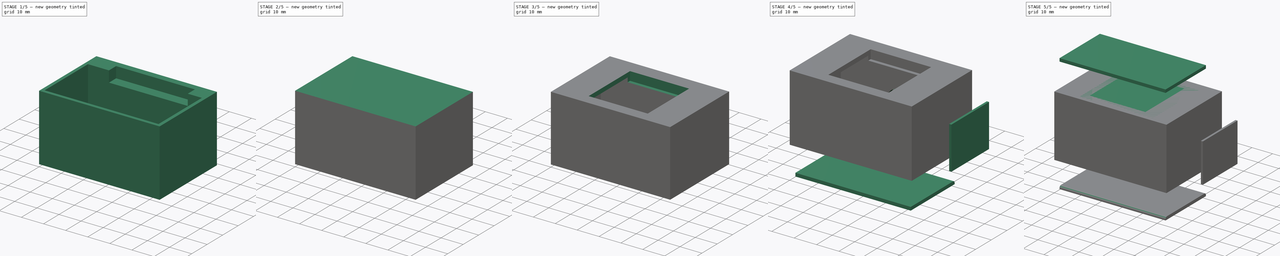
[diagram: build sequence overview — one tinted view per stage of 5, left to right]
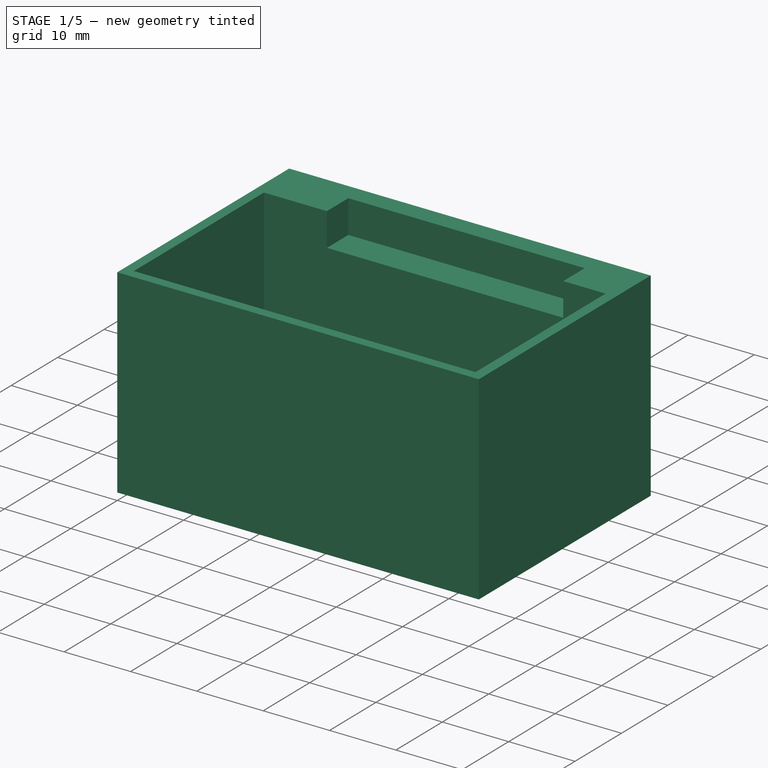
[diagram: stage 1 of 5 — iso view after this stage's code; geometry added in this stage tinted green]
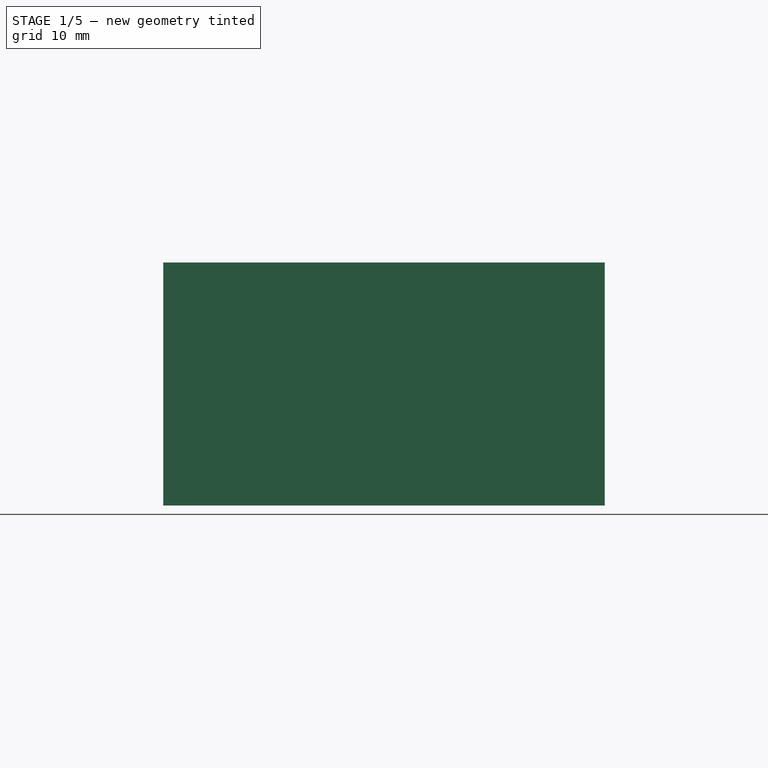
[diagram: stage 1 of 5 — front view after this stage's code; geometry added in this stage tinted green]
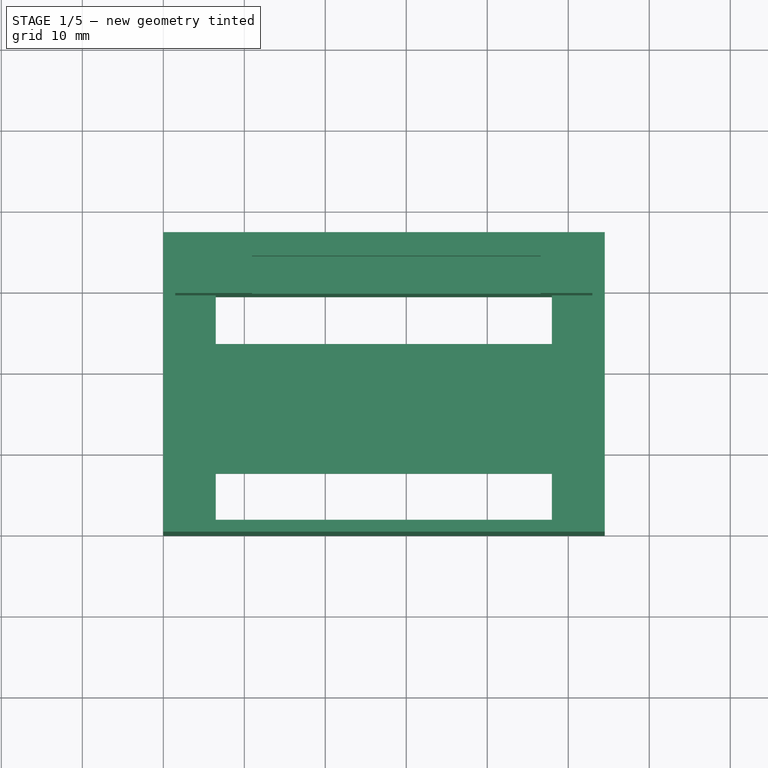
[diagram: stage 1 of 5 — top view after this stage's code; geometry added in this stage tinted green]
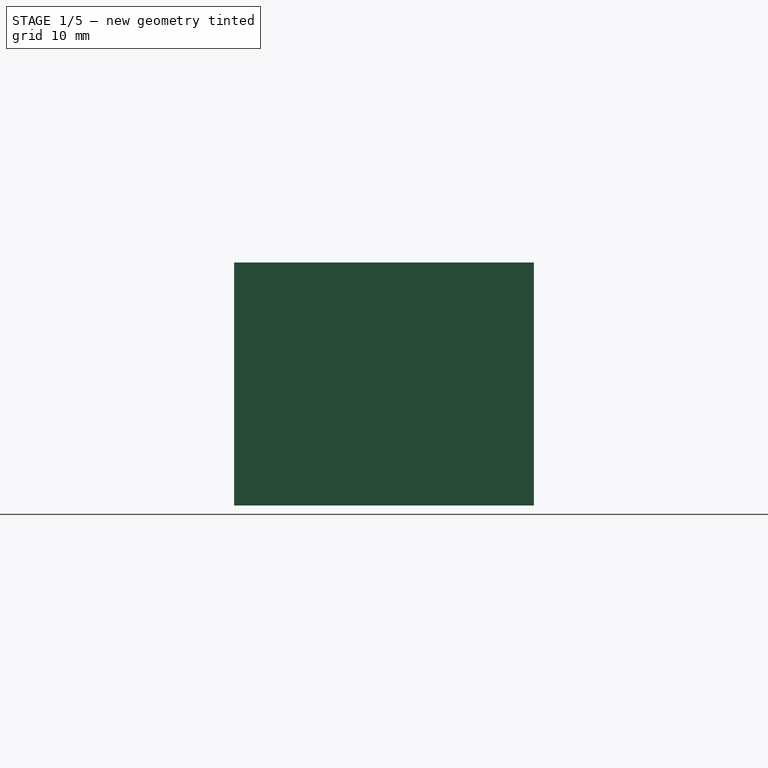
[diagram: stage 1 of 5 — right view after this stage's code; geometry added in this stage tinted green]
FCSTD DOCUMENT  (FreeCAD 1.0R39109 (Git))
Label: esp32
License: All rights reserved
LicenseURL: https://en.wikipedia.org/wiki/All_rights_reserved
objects: Sketcher::SketchObject×21, PartDesign::Pocket×17, PartDesign::Pad×12, Part::Box×4, PartDesign::Body×2, Part::Fillet×2, App::Part×1
note: 137 computed .brp shape members not serialized (recipe doc carries the construction recipe); baked Part::Feature solids carry a one-line shape summary decoded from their .brp

FEATURE [Sketcher::SketchObject] Sketch003
  ArcFitTolerance = 1e-06
  AttachmentSupport = -> [XY_Plane001]
  FullyConstrained = false
  MakeInternals = false
  MapMode = 5
  sketch-geometry (8):
    g0: LineSegment StartX=0 StartY=0 StartZ=0 EndX=54.5 EndY=0 EndZ=0
    g1: LineSegment StartX=54.5 StartY=0 StartZ=0 EndX=54.5 EndY=31 EndZ=0
    g2: LineSegment StartX=54.5 StartY=31 StartZ=0 EndX=0 EndY=31 EndZ=0
    g3: LineSegment StartX=0 StartY=31 StartZ=0 EndX=0 EndY=0 EndZ=0
    g4: LineSegment StartX=1.47324 StartY=29.4741 StartZ=0 EndX=1.47324 EndY=1.47406 EndZ=0
    g5: LineSegment StartX=1.47324 StartY=1.47406 StartZ=0 EndX=52.9732 EndY=1.47406 EndZ=0
    g6: LineSegment StartX=52.9732 StartY=1.47406 StartZ=0 EndX=52.9732 EndY=29.4741 EndZ=0
    g7: LineSegment StartX=52.9732 StartY=29.4741 StartZ=0 EndX=1.47324 EndY=29.4741 EndZ=0
  constraints (21):
    c: Coincident(g0,g1)
    c: Coincident(g1,g2)
    c: Coincident(g2,g3)
    c: Coincident(g3,g0)
    c: Horizontal(g0)
    c: Horizontal(g2)
    c: Vertical(g1)
    c: Vertical(g3)
    c: Distance(g1,g3) = 54.5
    c: Distance(g0,g2) = 31
    c: Coincident(g0,g-1)
    c: Coincident(g4,g5)
    c: Coincident(g5,g6)
    c: Coincident(g6,g7)
    c: Coincident(g7,g4)
    c: Vertical(g4)
    c: Vertical(g6)
    c: Horizontal(g5)
    c: Horizontal(g7)
    c: Distance(g4,g6) = 51.5
    c: Distance(g5,g7) = 28
FEATURE [PartDesign::Pad] Pad002
  Direction = (0,0,1)
  Length = 20
  Length2 = 10
  Profile = -> Sketch003
  ReferenceAxis = -> Sketch003 [N_Axis]
  Refine = true
  Suppressed = false
  Type = 4
FEATURE [Sketcher::SketchObject] Sketch004
  ArcFitTolerance = 1e-06
  AttachmentSupport = -> [Pad002]
  ExternalGeometry = -> [Pad002]
  FullyConstrained = false
  MakeInternals = false
  MapMode = 5
  Placement = pos=(1.47324,0,0) rot=(0.57735,0.57735,0.57735;2.0944rad)
  sketch-geometry (4):
    g0: LineSegment StartX=1.47406 StartY=0.979288 StartZ=0 EndX=29.4741 EndY=0.979288 EndZ=0
    g1: LineSegment StartX=29.4741 StartY=0.979288 StartZ=0 EndX=29.4741 EndY=2.97929 EndZ=0
    g2: LineSegment StartX=29.4741 StartY=2.97929 StartZ=0 EndX=1.47406 EndY=2.97929 EndZ=0
    g3: LineSegment StartX=1.47406 StartY=2.97929 StartZ=0 EndX=1.47406 EndY=0.979288 EndZ=0
  constraints (9):
    c: Coincident(g0,g1)
    c: Coincident(g1,g2)
    c: Coincident(g2,g3)
    c: Coincident(g3,g0)
    c: Horizontal(g0)
    c: Horizontal(g2)
    c: Vertical(g1)
    c: Vertical(g3)
    c: Distance(g1,g3) = 28
FEATURE [PartDesign::Pad] Pad003
  BaseFeature = -> Pad002
  Direction = (1,0,0)
  Length = 10
  Length2 = 10
  Profile = -> Sketch004
  ReferenceAxis = -> Sketch004 [N_Axis]
  Refine = true
  Suppressed = false
  Type = 1
FEATURE [Sketcher::SketchObject] Sketch005
  ArcFitTolerance = 1e-06
  AttachmentSupport = -> [Pad003]
  ExternalGeometry = -> [Pad003]
  FullyConstrained = true
  MakeInternals = false
  MapMode = 5
  Placement = pos=(0,0,2.97929) rot=(0,0,1;0rad)
  sketch-geometry (8):
    g0: LineSegment StartX=6.47324 StartY=29.4741 StartZ=0 EndX=6.47324 EndY=23.4741 EndZ=0
    g1: LineSegment StartX=6.47324 StartY=23.4741 StartZ=0 EndX=47.9732 EndY=23.4741 EndZ=0
    g2: LineSegment StartX=47.9732 StartY=23.4741 StartZ=0 EndX=47.9732 EndY=29.4741 EndZ=0
    g3: LineSegment StartX=47.9732 StartY=29.4741 StartZ=0 EndX=6.47324 EndY=29.4741 EndZ=0
    g4: LineSegment StartX=6.47324 StartY=1.47406 StartZ=0 EndX=47.9732 EndY=1.47406 EndZ=0
    g5: LineSegment StartX=47.9732 StartY=1.47406 StartZ=0 EndX=47.9732 EndY=7.47407 EndZ=0
    g6: LineSegment StartX=47.9732 StartY=7.47407 StartZ=0 EndX=6.47324 EndY=7.47407 EndZ=0
    g7: LineSegment StartX=6.47324 StartY=7.47407 StartZ=0 EndX=6.47324 EndY=1.47406 EndZ=0
  constraints (24):
    c: Coincident(g0,g1)
    c: Coincident(g1,g2)
    c: Coincident(g2,g3)
    c: Coincident(g3,g0)
    c: Vertical(g0)
    c: Vertical(g2)
    c: Horizontal(g1)
    c: Horizontal(g3)
    c: PointOnObject(g0,g-6)
    c: Distance(g-5,g0) = 5
    c: Distance(g-3,g2) = 5
    c: Distance(g3,g1) = 6
    c: Coincident(g4,g5)
    c: Coincident(g5,g6)
    c: Coincident(g6,g7)
    c: Coincident(g7,g4)
    c: Horizontal(g4)
    c: Horizontal(g6)
    c: Vertical(g5)
    c: Vertical(g7)
    c: PointOnObject(g4,g-4)
    c: Distance(g-5,g7) = 5
    c: Distance(g-3,g5) = 5
    c: Distance(g4,g6) = 6
FEATURE [PartDesign::Pocket] Pocket001
  BaseFeature = -> Pad003
  Direction = (0,0,-1)
  Length = 5
  Length2 = 5
  Profile = -> Sketch005
  ReferenceAxis = -> Sketch005 [N_Axis]
  Refine = true
  Suppressed = false
  Type = 0
FEATURE [Sketcher::SketchObject] Sketch007
  ArcFitTolerance = 1e-06
  AttachmentSupport = -> [Pad004]
  FullyConstrained = false
  MakeInternals = false
  MapMode = 5
  Placement = pos=(0,0,0) rot=(0.57735,-0.57735,-0.57735;2.0944rad)
  sketch-geometry (4):
    g0: LineSegment StartX=-18.0085 StartY=0.99461 StartZ=0 EndX=-10.0083 EndY=0.99461 EndZ=0
    g1: LineSegment StartX=-10.0083 StartY=0.99461 StartZ=0 EndX=-10.0083 EndY=5.99765 EndZ=0
    g2: LineSegment StartX=-10.0083 StartY=5.99765 StartZ=0 EndX=-18.0085 EndY=5.99765 EndZ=0
    g3: LineSegment StartX=-18.0085 StartY=5.99765 StartZ=0 EndX=-18.0085 EndY=0.99461 EndZ=0
  constraints (8):
    c: Coincident(g0,g1)
    c: Coincident(g1,g2)
    c: Coincident(g2,g3)
    c: Coincident(g3,g0)
    c: Horizontal(g0)
    c: Horizontal(g2)
    c: Vertical(g1)
    c: Vertical(g3)
FEATURE [PartDesign::Body] Body  label="ESP32"
  AllowCompound = false
  Group = -> [Sketch,Pad,Sketch001,Pocket,Sketch002,Pad001,Sketch006,Pad004,Sketch007]
  Origin = -> Origin
  Placement = pos=(1.5,29.5,0) rot=(1,0,0;3.14159rad)
  Tip = -> Pad004
FEATURE [Sketcher::SketchObject] Sketch008
  ArcFitTolerance = 1e-06
  AttachmentSupport = -> [Pocket001]
  FullyConstrained = true
  MakeInternals = false
  MapMode = 5
  Placement = pos=(1.47324,0,0) rot=(0.57735,0.57735,0.57735;2.0944rad)
FEATURE [Sketcher::SketchObject] Sketch009
  ArcFitTolerance = 1e-06
  AttachmentSupport = -> [Pocket001]
  ExternalGeometry = -> [Pocket001]
  FullyConstrained = true
  MakeInternals = false
  MapMode = 45
  Placement = pos=(1.47324,15.4741,-4.51036) rot=(0.707107,0,0.707107;3.14159rad)
  sketch-geometry (4):
    g0: LineSegment StartX=5.48964 StartY=-4 StartZ=0 EndX=5.48964 EndY=4 EndZ=0
    g1: LineSegment StartX=5.48964 StartY=4 StartZ=0 EndX=0.489644 EndY=4 EndZ=0
    g2: LineSegment StartX=0.489644 StartY=4 StartZ=0 EndX=0.489644 EndY=-4 EndZ=0
    g3: LineSegment StartX=0.489644 StartY=-4 StartZ=0 EndX=5.48964 EndY=-4 EndZ=0
  constraints (12):
    c: Coincident(g0,g1)
    c: Coincident(g1,g2)
    c: Coincident(g2,g3)
    c: Coincident(g3,g0)
    c: Vertical(g0)
    c: Vertical(g2)
    c: Horizontal(g1)
    c: Horizontal(g3)
    c: PointOnObject(g0,g-5)
    c: Distance(g-6,g1) = 10
    c: Distance(g-3,g3) = 10
    c: Distance(g0,g2) = 5
FEATURE [PartDesign::Pocket] Pocket002
  BaseFeature = -> Pocket001
  Direction = (-1,0,2e-16)
  Length = 5
  Length2 = 5
  Profile = -> Sketch009
  ReferenceAxis = -> Sketch009 [N_Axis]
  Refine = true
  Suppressed = false
  Type = 0
FEATURE [PartDesign::Pad] Pad005
  BaseFeature = -> Pocket002
  Direction = (0,1,0)
  Length = 6
  Length2 = 10
  Profile = -> Pocket002 [Face6]
  Refine = true
  Suppressed = false
  Type = 0
FEATURE [Sketcher::SketchObject] Sketch010
  ArcFitTolerance = 1e-06
  AttachmentSupport = -> [Pad005]
  FullyConstrained = false
  MakeInternals = false
  MapMode = 5
  Placement = pos=(0,0,20) rot=(0,0,1;0rad)
  sketch-geometry (4):
    g0: LineSegment StartX=10.9592 StartY=29.5073 StartZ=0 EndX=46.5899 EndY=29.5073 EndZ=0
    g1: LineSegment StartX=46.5899 StartY=29.5073 StartZ=0 EndX=46.5899 EndY=34.0852 EndZ=0
    g2: LineSegment StartX=46.5899 StartY=34.0852 StartZ=0 EndX=10.9592 EndY=34.0852 EndZ=0
    g3: LineSegment StartX=10.9592 StartY=34.0852 StartZ=0 EndX=10.9592 EndY=29.5073 EndZ=0
  constraints (8):
    c: Coincident(g0,g1)
    c: Coincident(g1,g2)
    c: Coincident(g2,g3)
    c: Coincident(g3,g0)
    c: Horizontal(g0)
    c: Horizontal(g2)
    c: Vertical(g1)
    c: Vertical(g3)
FEATURE [PartDesign::Pocket] Pocket003
  BaseFeature = -> Pad005
  Direction = (0,0,-1)
  Length = 5
  Length2 = 5
  Profile = -> Sketch010
  ReferenceAxis = -> Sketch010 [N_Axis]
  Refine = true
  Suppressed = false
  Type = 0
FEATURE [PartDesign::Pocket] Pocket004
  BaseFeature = -> Pocket003
  Direction = (0,-1,0)
  Length = 5
  Length2 = 5
  Profile = -> Pocket003 [Face17]
  Refine = true
  Suppressed = false
  Type = 0
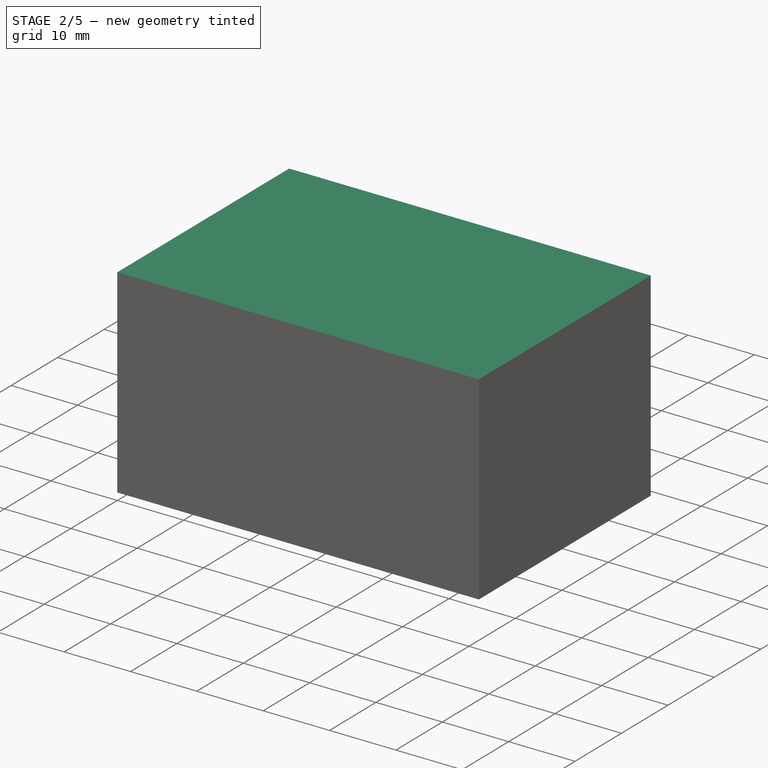
[diagram: stage 2 of 5 — iso view after this stage's code; geometry added in this stage tinted green]
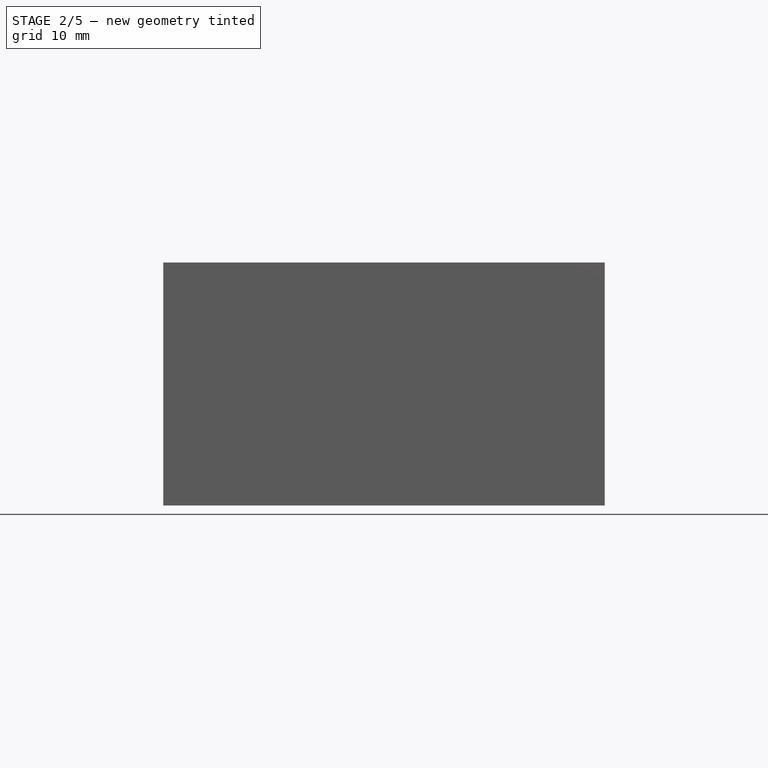
[diagram: stage 2 of 5 — front view after this stage's code; geometry added in this stage tinted green]
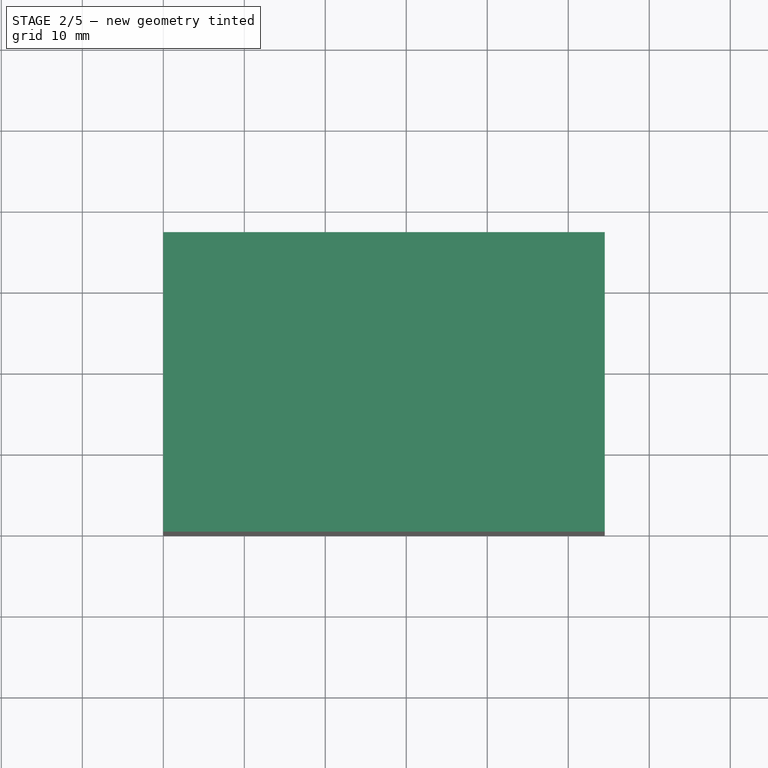
[diagram: stage 2 of 5 — top view after this stage's code; geometry added in this stage tinted green]
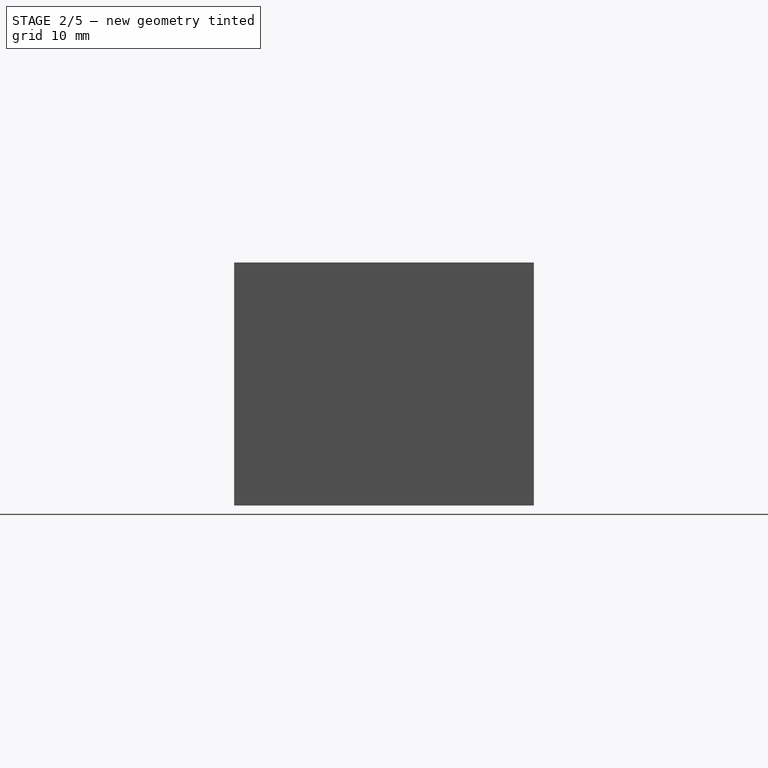
[diagram: stage 2 of 5 — right view after this stage's code; geometry added in this stage tinted green]
FEATURE [Sketcher::SketchObject] Sketch011
  ArcFitTolerance = 1e-06
  AttachmentSupport = -> [Pocket004]
  ExternalGeometry = -> [Pocket004]
  FullyConstrained = true
  MakeInternals = false
  MapMode = 5
  Placement = pos=(0,0,-10) rot=(1,0,0;3.14159rad)
  sketch-geometry (4):
    g0: LineSegment StartX=14 StartY=-30.7241 StartZ=0 EndX=14 EndY=-35.75 EndZ=0
    g1: LineSegment StartX=14 StartY=-35.75 StartZ=0 EndX=40.5 EndY=-35.75 EndZ=0
    g2: LineSegment StartX=40.5 StartY=-35.75 StartZ=0 EndX=40.5 EndY=-30.7241 EndZ=0
    g3: LineSegment StartX=40.5 StartY=-30.7241 StartZ=0 EndX=14 EndY=-30.7241 EndZ=0
  constraints (12):
    c: Coincident(g0,g1)
    c: Coincident(g1,g2)
    c: Coincident(g2,g3)
    c: Coincident(g3,g0)
    c: Vertical(g0)
    c: Vertical(g2)
    c: Horizontal(g1)
    c: Horizontal(g3)
    c: Distance(g-3,g3) = 1.25
    c: Distance(g-4,g1) = 1.25
    c: Distance(g-6,g2) = 14
    c: Distance(g-5,g0) = 14
FEATURE [PartDesign::Pocket] Pocket005
  BaseFeature = -> Pocket004
  Direction = (0,0,1)
  Length = 24
  Length2 = 5
  Profile = -> Sketch011
  ReferenceAxis = -> Sketch011 [N_Axis]
  Refine = true
  Suppressed = false
  Type = 0
FEATURE [Sketcher::SketchObject] Sketch012
  ArcFitTolerance = 1e-06
  AttachmentSupport = -> [Pocket005]
  ExternalGeometry = -> [Pocket005]
  FullyConstrained = true
  MakeInternals = false
  MapMode = 5
  Placement = pos=(0,30.7241,0) rot=(0,0.707107,0.707107;3.14159rad)
  sketch-geometry (1):
    g0: Circle CenterX=-24 CenterY=2 CenterZ=0 NormalX=0 NormalY=0 NormalZ=1 AngleXU=0 Radius=5
  constraints (3):
    c: Diameter(g0) = 10
    c: Distance(g0,g-4) = 10
    c: Distance(g0,g-5) = 12
FEATURE [PartDesign::Pocket] Pocket006
  BaseFeature = -> Pocket005
  Direction = (0,-1,2e-16)
  Length = 5
  Length2 = 5
  Profile = -> Sketch012
  ReferenceAxis = -> Sketch012 [N_Axis]
  Refine = true
  Suppressed = false
  Type = 0
FEATURE [Sketcher::SketchObject] Sketch013
  ArcFitTolerance = 1e-06
  AttachmentSupport = -> [Pocket006]
  ExternalGeometry = -> [Pocket006]
  FullyConstrained = true
  MakeInternals = false
  MapMode = 5
  Placement = pos=(0,37,0) rot=(0,0.707107,0.707107;3.14159rad)
  sketch-geometry (17):
    g0: LineSegment [constr] StartX=-14 StartY=-4 StartZ=0 EndX=-40.5 EndY=-4 EndZ=0
    g1: LineSegment StartX=-38 StartY=13 StartZ=0 EndX=-38 EndY=-3 EndZ=0
    g2: LineSegment StartX=-38 StartY=-3 StartZ=0 EndX=-34 EndY=-3 EndZ=0
    g3: LineSegment StartX=-34 StartY=-3 StartZ=0 EndX=-34 EndY=13 EndZ=0
    g4: LineSegment StartX=-34 StartY=13 StartZ=0 EndX=-38 EndY=13 EndZ=0
    g5: LineSegment StartX=-32 StartY=13 StartZ=0 EndX=-32 EndY=-3 EndZ=0
    g6: LineSegment StartX=-32 StartY=-3 StartZ=0 EndX=-28 EndY=-3 EndZ=0
    g7: LineSegment StartX=-28 StartY=-3 StartZ=0 EndX=-28 EndY=13 EndZ=0
    g8: LineSegment StartX=-28 StartY=13 StartZ=0 EndX=-32 EndY=13 EndZ=0
    g9: LineSegment StartX=-26 StartY=13 StartZ=0 EndX=-26 EndY=-3 EndZ=0
    g10: LineSegment StartX=-26 StartY=-3 StartZ=0 EndX=-22 EndY=-3 EndZ=0
    g11: LineSegment StartX=-22 StartY=-3 StartZ=0 EndX=-22 EndY=13 EndZ=0
    g12: LineSegment StartX=-22 StartY=13 StartZ=0 EndX=-26 EndY=13 EndZ=0
    g13: LineSegment StartX=-20 StartY=13 StartZ=0 EndX=-20 EndY=-3 EndZ=0
    g14: LineSegment StartX=-20 StartY=-3 StartZ=0 EndX=-16 EndY=-3 EndZ=0
    g15: LineSegment StartX=-16 StartY=-3 StartZ=0 EndX=-16 EndY=13 EndZ=0
    g16: LineSegment StartX=-16 StartY=13 StartZ=0 EndX=-20 EndY=13 EndZ=0
  constraints (54):
    c: Distance(g-7,g-5) = 6
    c: Horizontal(g0)
    c: PointOnObject(g0,g-3)
    c: PointOnObject(g0,g-4)
    c: Distance(g-6,g0) = 6
    c: Coincident(g1,g2)
    c: Coincident(g2,g3)
    c: Coincident(g3,g4)
    c: Coincident(g4,g1)
    c: Vertical(g1)
    c: Vertical(g3)
    c: Horizontal(g2)
    c: Horizontal(g4)
    c: Coincident(g5,g6)
    c: Coincident(g6,g7)
    c: Coincident(g7,g8)
    c: Coincident(g8,g5)
    c: Vertical(g5)
    c: Vertical(g7)
    c: Horizontal(g6)
    c: Horizontal(g8)
    c: Coincident(g9,g10)
    c: Coincident(g10,g11)
    c: Coincident(g11,g12)
    c: Coincident(g12,g9)
    c: Vertical(g9)
    c: Vertical(g11)
    c: Horizontal(g10)
    c: Horizontal(g12)
    c: Coincident(g13,g14)
    c: Coincident(g14,g15)
    c: Coincident(g15,g16)
    c: Coincident(g16,g13)
    c: Vertical(g13)
    c: Vertical(g15)
    c: Horizontal(g14)
    c: Horizontal(g16)
    c: Distance(g-5,g4) = 1
    c: Distance(g0,g2) = 1
    c: Distance(g-4,g1) = 2.5
    c: Distance(g3,g1) = 4
    c: Distance(g3,g5) = 2
    c: Distance(g-5,g8) = 1
    c: Distance(g0,g6) = 1
    c: Distance(g0,g10) = 1
    c: Distance(g-5,g12) = 1
    c: Distance(g-5,g16) = 1
    c: Distance(g0,g14) = 1
    c: Distance(g7,g5) = 4
    c: Distance(g9,g7) = 2
    c: Distance(g11,g9) = 4
    c: Distance(g13,g11) = 2
    c: Distance(g15,g13) = 4
    c: Distance(g-3,g15) = 2
FEATURE [PartDesign::Pocket] Pocket007
  BaseFeature = -> Pocket006
  Direction = (0,-1,2e-16)
  Length = 5
  Length2 = 5
  Profile = -> Sketch013
  ReferenceAxis = -> Sketch013 [N_Axis]
  Refine = true
  Suppressed = false
  Type = 0
FEATURE [Sketcher::SketchObject] Sketch014
  ArcFitTolerance = 1e-06
  AttachmentSupport = -> [Pocket007]
  FullyConstrained = true
  MakeInternals = false
  MapMode = 5
  Placement = pos=(0,29.4741,0) rot=(1,0,0;1.5708rad)
FEATURE [Sketcher::SketchObject] Sketch015
  ArcFitTolerance = 1e-06
  AttachmentSupport = -> [Pocket007]
  ExternalGeometry = -> [Pocket007]
  FullyConstrained = true
  MakeInternals = false
  MapMode = 5
  Placement = pos=(0,29.4741,0) rot=(1,0,0;1.5708rad)
  sketch-geometry (8):
    g0: LineSegment StartX=1.47324 StartY=20 StartZ=0 EndX=1.47324 EndY=18 EndZ=0
    g1: LineSegment StartX=1.47324 StartY=18 StartZ=0 EndX=10.9632 EndY=18 EndZ=0
    g2: LineSegment StartX=10.9632 StartY=18 StartZ=0 EndX=10.9632 EndY=20 EndZ=0
    g3: LineSegment StartX=10.9632 StartY=20 StartZ=0 EndX=1.47324 EndY=20 EndZ=0
    g4: LineSegment StartX=46.5899 StartY=20 StartZ=0 EndX=46.5899 EndY=18 EndZ=0
    g5: LineSegment StartX=46.5899 StartY=18 StartZ=0 EndX=52.9732 EndY=18 EndZ=0
    g6: LineSegment StartX=52.9732 StartY=18 StartZ=0 EndX=52.9732 EndY=20 EndZ=0
    g7: LineSegment StartX=52.9732 StartY=20 StartZ=0 EndX=46.5899 EndY=20 EndZ=0
  constraints (24):
    c: Coincident(g0,g1)
    c: Coincident(g1,g2)
    c: Coincident(g2,g3)
    c: Coincident(g3,g0)
    c: Vertical(g0)
    c: Vertical(g2)
    c: Horizontal(g1)
    c: Horizontal(g3)
    c: Coincident(g0,g-5)
    c: Distance(g1,g3) = 2
    c: Distance(g-5,g-6) = 51.5
    c: Distance(g2,g0) = 9.49
    c: Distance(g-8,g-5) = 9.48596
    c: Coincident(g4,g5)
    c: Coincident(g5,g6)
    c: Coincident(g6,g7)
    c: Coincident(g7,g4)
    c: Vertical(g4)
    c: Vertical(g6)
    c: Horizontal(g5)
    c: Horizontal(g7)
    c: Coincident(g4,g-9)
    c: PointOnObject(g5,g-6)
    c: Distance(g5,g7) = 2
FEATURE [PartDesign::Pad] Pad006
  BaseFeature = -> Pocket007
  Direction = (0,-1,2e-16)
  Length = 10
  Length2 = 10
  Profile = -> Sketch015
  ReferenceAxis = -> Sketch015 [N_Axis]
  Refine = true
  Suppressed = false
  Type = 2
FEATURE [Sketcher::SketchObject] Sketch016
  ArcFitTolerance = 1e-06
  AttachmentSupport = -> [Pad006]
  ExternalGeometry = -> [Pad006]
  FullyConstrained = true
  MakeInternals = false
  MapMode = 5
  Placement = pos=(0,0,0) rot=(0.57735,-0.57735,-0.57735;2.0944rad)
  sketch-geometry (4):
    g0: LineSegment StartX=-37 StartY=-10 StartZ=0 EndX=-29.47 EndY=-10 EndZ=0
    g1: LineSegment StartX=-29.47 StartY=-10 StartZ=0 EndX=-29.47 EndY=20 EndZ=0
    g2: LineSegment StartX=-29.47 StartY=20 StartZ=0 EndX=-37 EndY=20 EndZ=0
    g3: LineSegment StartX=-37 StartY=20 StartZ=0 EndX=-37 EndY=-10 EndZ=0
  constraints (12):
    c: Coincident(g0,g1)
    c: Coincident(g1,g2)
    c: Coincident(g2,g3)
    c: Coincident(g3,g0)
    c: Horizontal(g0)
    c: Horizontal(g2)
    c: Vertical(g1)
    c: Vertical(g3)
    c: Coincident(g0,g-6)
    c: PointOnObject(g1,g-7)
    c: Distance(g3,g-3) = 7.52593
    c: Distance(g1,g3) = 7.53
FEATURE [PartDesign::Pad] Pad007
  BaseFeature = -> Pad006
  Direction = (-1,0,0)
  Length = 10
  Length2 = 10
  Profile = -> Sketch016
  ReferenceAxis = -> Sketch016 [N_Axis]
  Refine = true
  Reversed = true
  Suppressed = false
  Type = 1
FEATURE [PartDesign::Pad] Pad008
  BaseFeature = -> Pad007
  Direction = (1,0,0)
  Length = 10
  Length2 = 10
  Profile = -> Pad007 [Face3]
  Refine = true
  Suppressed = false
  Type = 1
FEATURE [Sketcher::SketchObject] Sketch017
  ArcFitTolerance = 1e-06
  AttachmentSupport = -> [Pad008]
  ExternalGeometry = -> [Pad008]
  FullyConstrained = true
  MakeInternals = false
  MapMode = 5
  Placement = pos=(0,0,20) rot=(0,0,1;0rad)
  sketch-geometry (4):
    g0: LineSegment StartX=40.75 StartY=32 StartZ=0 EndX=13.75 EndY=32 EndZ=0
    g1: LineSegment StartX=13.75 StartY=32 StartZ=0 EndX=13.75 EndY=5 EndZ=0
    g2: LineSegment StartX=13.75 StartY=5 StartZ=0 EndX=40.75 EndY=5 EndZ=0
    g3: LineSegment StartX=40.75 StartY=5 StartZ=0 EndX=40.75 EndY=32 EndZ=0
  constraints (14):
    c: Coincident(g0,g1)
    c: Coincident(g1,g2)
    c: Coincident(g2,g3)
    c: Coincident(g3,g0)
    c: Horizontal(g0)
    c: Horizontal(g2)
    c: Vertical(g1)
    c: Vertical(g3)
    c: Distance(g1,g3) = 27
    c: Distance(g0,g2) = 27
    c: Distance(g-4,g-5) = 37
    c: Distance(g-3,g-2) = 54.5
    c: Distance(g-2,g1) = 13.75
    c: Distance(g-5,g0) = 5
FEATURE [PartDesign::Pocket] Pocket008
  BaseFeature = -> Pad008
  Direction = (0,1,0)
  Length = 1
  Length2 = 5
  Profile = -> Pad008 [Face10]
  Refine = true
  Suppressed = false
  Type = 0
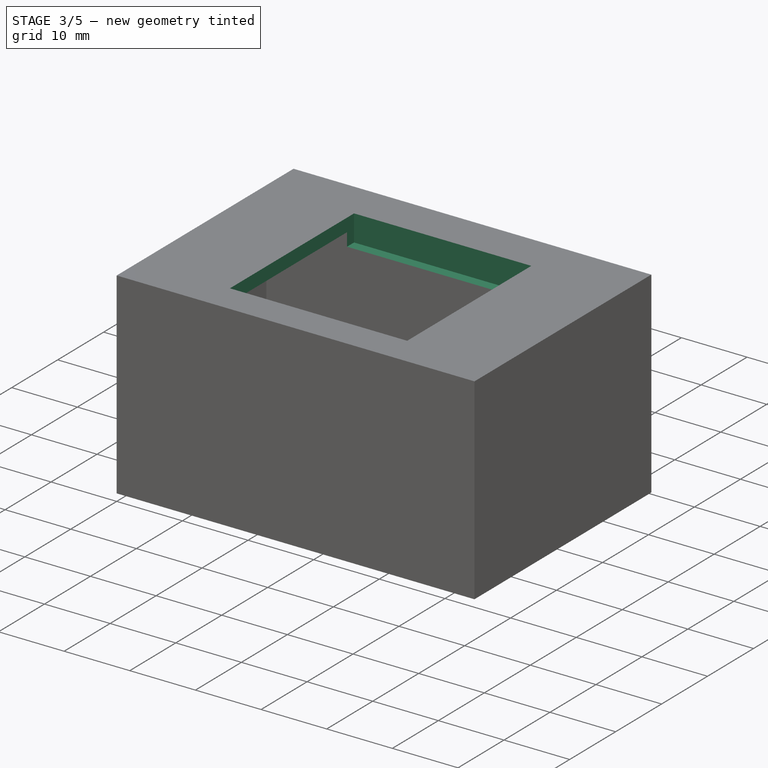
[diagram: stage 3 of 5 — iso view after this stage's code; geometry added in this stage tinted green]
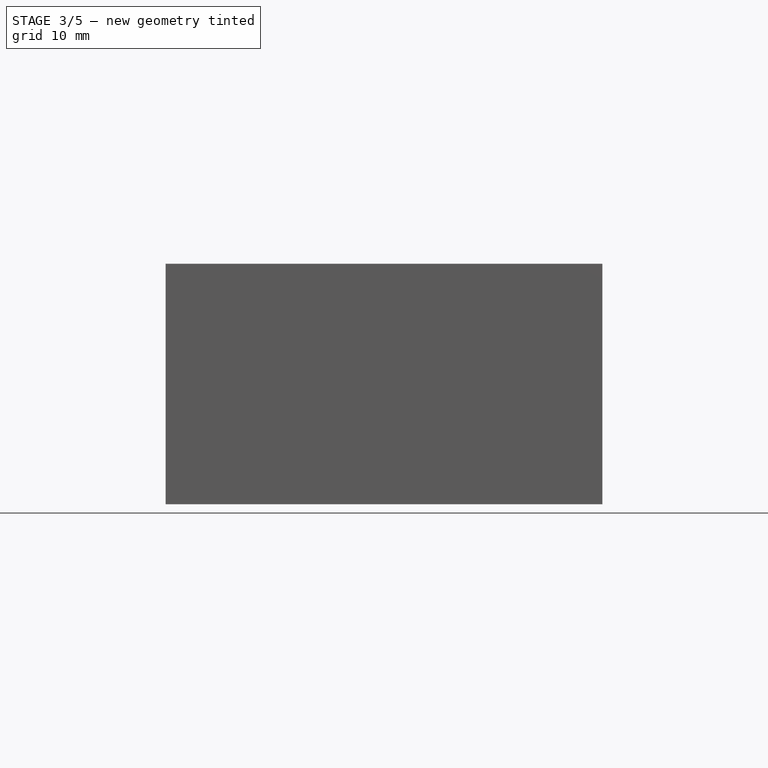
[diagram: stage 3 of 5 — front view after this stage's code; geometry added in this stage tinted green]
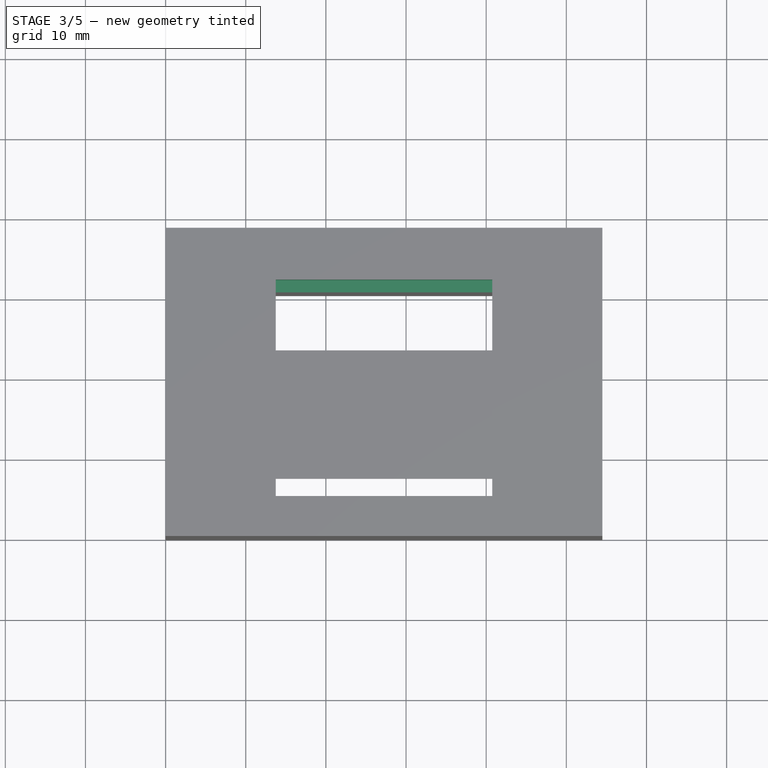
[diagram: stage 3 of 5 — top view after this stage's code; geometry added in this stage tinted green]
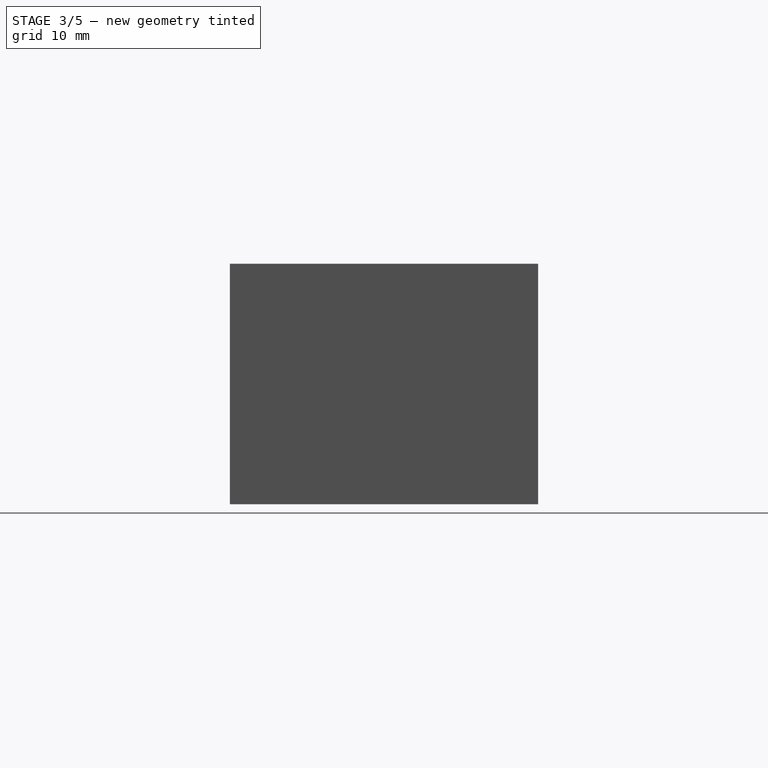
[diagram: stage 3 of 5 — right view after this stage's code; geometry added in this stage tinted green]
FEATURE [PartDesign::Pocket] Pocket009
  BaseFeature = -> Pocket008
  Direction = (0,1,0)
  Length = 1
  Length2 = 5
  Profile = -> Pocket008 [Face9]
  Refine = true
  Suppressed = false
  Type = 0
FEATURE [PartDesign::Pocket] Pocket010
  BaseFeature = -> Pocket009
  Direction = (0,0,-1)
  Length = 4
  Length2 = 5
  Profile = -> Sketch017
  ReferenceAxis = -> Sketch017 [N_Axis]
  Refine = true
  Suppressed = false
  Type = 0
FEATURE [PartDesign::Pad] Pad009
  BaseFeature = -> Pocket010
  Direction = (0,1,0)
  Length = 0.47
  Length2 = 10
  Profile = -> Pocket010 [Face6]
  Refine = true
  Suppressed = false
  Type = 0
FEATURE [PartDesign::Pad] Pad010
  BaseFeature = -> Pad009
  Direction = (0,1,0)
  Length = 0.47
  Length2 = 10
  Profile = -> Pad009 [Face3]
  Refine = true
  Suppressed = false
  Type = 0
FEATURE [PartDesign::Pocket] Pocket011
  BaseFeature = -> Pad010
  Direction = (0,-1,0)
  Length = 0.47
  Length2 = 5
  Profile = -> Pad010 [Face3]
  Refine = true
  Suppressed = false
  Type = 0
FEATURE [PartDesign::Pad] Pad011
  BaseFeature = -> Pocket011
  Direction = (0,1,0)
  Length = 1
  Length2 = 10
  Profile = -> Pocket011 [Face6]
  Refine = true
  Suppressed = false
  Type = 0
FEATURE [Sketcher::SketchObject] Sketch018
  ArcFitTolerance = 1e-06
  AttachmentSupport = -> [Pad011]
  ExternalGeometry = -> [Pad011]
  FullyConstrained = true
  MakeInternals = false
  MapMode = 5
  Placement = pos=(0,0,-10) rot=(1,0,0;3.14159rad)
  sketch-geometry (4):
    g0: LineSegment StartX=14.25 StartY=-32.47 StartZ=0 EndX=14.25 EndY=-36.47 EndZ=0
    g1: LineSegment StartX=14.25 StartY=-36.47 StartZ=0 EndX=40.25 EndY=-36.47 EndZ=0
    g2: LineSegment StartX=40.25 StartY=-36.47 StartZ=0 EndX=40.25 EndY=-32.47 EndZ=0
    g3: LineSegment StartX=40.25 StartY=-32.47 StartZ=0 EndX=14.25 EndY=-32.47 EndZ=0
  constraints (13):
    c: Coincident(g0,g1)
    c: Coincident(g1,g2)
    c: Coincident(g2,g3)
    c: Coincident(g3,g0)
    c: Vertical(g0)
    c: Vertical(g2)
    c: Horizontal(g1)
    c: Horizontal(g3)
    c: Distance(g0,g2) = 26
    c: Distance(g1,g3) = 4
    c: Distance(g-5,g-6) = 54.5
    c: Distance(g-5,g2) = 14.25
    c: Distance(g-3,g3) = 2
FEATURE [PartDesign::Pocket] Pocket012
  BaseFeature = -> Pad011
  Direction = (0,0,1)
  Length = 21
  Length2 = 5
  Profile = -> Sketch018
  ReferenceAxis = -> Sketch018 [N_Axis]
  Refine = true
  Suppressed = false
  Type = 0
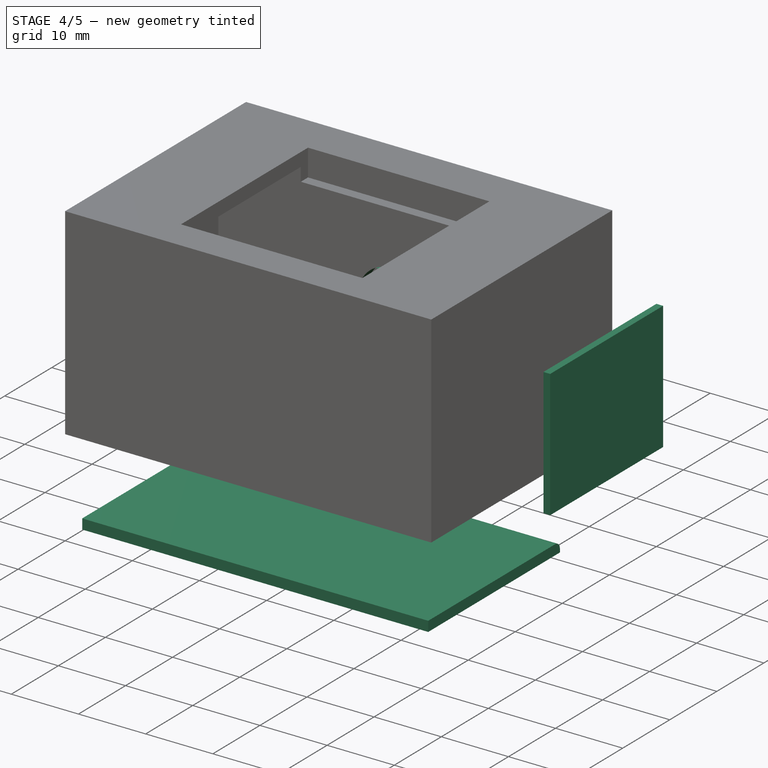
[diagram: stage 4 of 5 — iso view after this stage's code; geometry added in this stage tinted green]
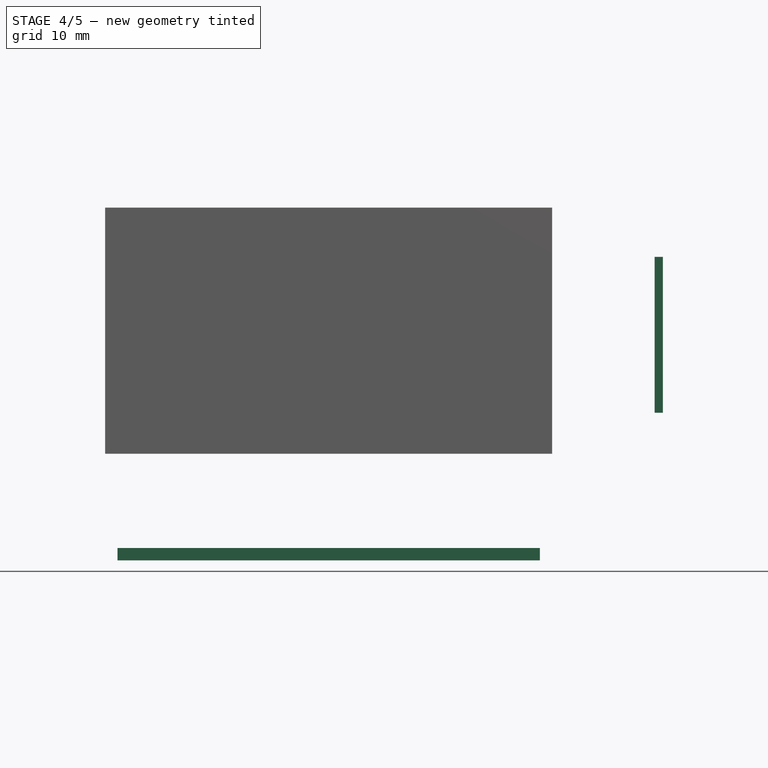
[diagram: stage 4 of 5 — front view after this stage's code; geometry added in this stage tinted green]
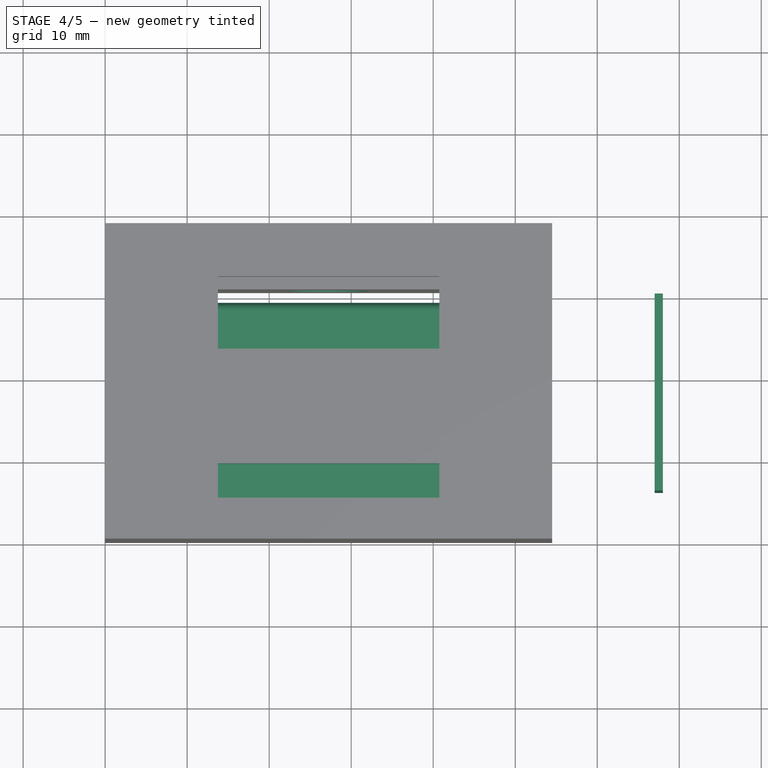
[diagram: stage 4 of 5 — top view after this stage's code; geometry added in this stage tinted green]
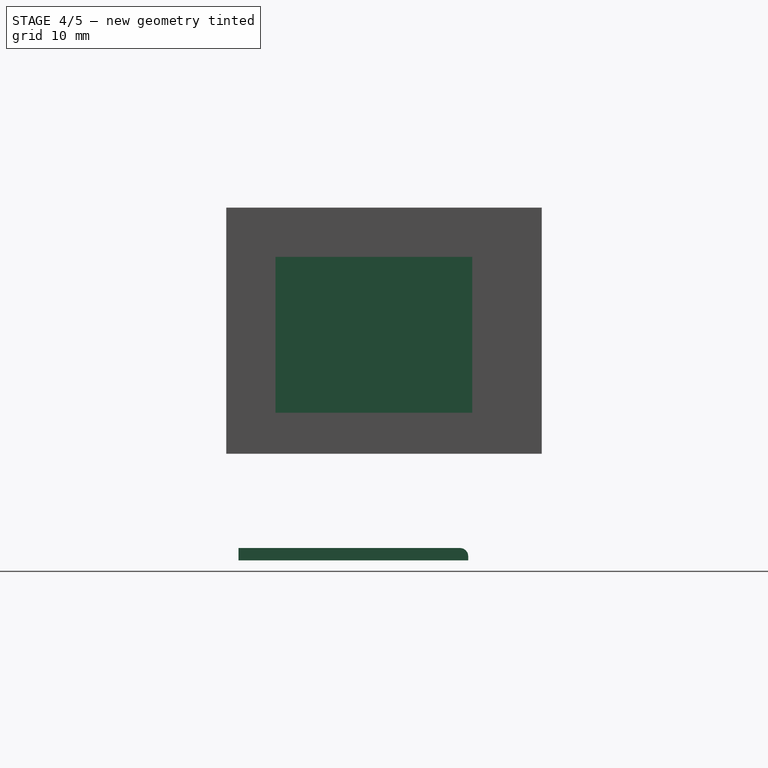
[diagram: stage 4 of 5 — right view after this stage's code; geometry added in this stage tinted green]
FEATURE [Part::Box] Box  label="задняя крышка"
  AttacherType = Attacher::AttachEngine3D
  Height = 1.5
  Length = 51.5
  Placement = pos=(1.5,1.5,-23) rot=(0,0,1;0rad)
  Width = 28
FEATURE [Part::Fillet] Fillet
  Base = -> Box
  EdgeLinks = -> Box [Edge12]
  Edges = 1 edges r=1: [Edge12]
FEATURE [Part::Box] Box003  label="sensor"
  AttacherType = Attacher::AttachEngine3D
  Height = 19
  Length = 1
  Placement = pos=(67,6,-5) rot=(0,0,1;0rad)
  Width = 24
FEATURE [PartDesign::Pocket] Pocket013
  BaseFeature = -> Pocket012
  Direction = (0,0,1)
  Length = 5
  Length2 = 5
  Profile = -> Pocket012 [Face34]
  Refine = true
  Suppressed = false
  Type = 0
FEATURE [Sketcher::SketchObject] Sketch019
  ArcFitTolerance = 1e-06
  AttachmentSupport = -> [Pocket013]
  ExternalGeometry = -> [Pocket013]
  FullyConstrained = true
  MakeInternals = false
  MapMode = 5
  Placement = pos=(0,38.47,0) rot=(0,0.707107,0.707107;3.14159rad)
  sketch-geometry (12):
    g0: LineSegment StartX=-38.25 StartY=14 StartZ=0 EndX=-38.25 EndY=10 EndZ=0
    g1: LineSegment StartX=-38.25 StartY=10 StartZ=0 EndX=-16.25 EndY=10 EndZ=0
    g2: LineSegment StartX=-16.25 StartY=10 StartZ=0 EndX=-16.25 EndY=14 EndZ=0
    g3: LineSegment StartX=-16.25 StartY=14 StartZ=0 EndX=-38.25 EndY=14 EndZ=0
    g4: LineSegment StartX=-38.25 StartY=8 StartZ=0 EndX=-38.25 EndY=4 EndZ=0
    g5: LineSegment StartX=-38.25 StartY=4 StartZ=0 EndX=-16.25 EndY=4 EndZ=0
    g6: LineSegment StartX=-16.25 StartY=4 StartZ=0 EndX=-16.25 EndY=8 EndZ=0
    g7: LineSegment StartX=-16.25 StartY=8 StartZ=0 EndX=-38.25 EndY=8 EndZ=0
    g8: LineSegment StartX=-38.25 StartY=2 StartZ=0 EndX=-38.25 EndY=-2 EndZ=0
    g9: LineSegment StartX=-38.25 StartY=-2 StartZ=0 EndX=-16.25 EndY=-2 EndZ=0
    g10: LineSegment StartX=-16.25 StartY=-2 StartZ=0 EndX=-16.25 EndY=2 EndZ=0
    g11: LineSegment StartX=-16.25 StartY=2 StartZ=0 EndX=-38.25 EndY=2 EndZ=0
  constraints (37):
    c: Distance(g-6,g-3) = 4
    c: Coincident(g0,g1)
    c: Coincident(g1,g2)
    c: Coincident(g2,g3)
    c: Coincident(g3,g0)
    c: Vertical(g0)
    c: Vertical(g2)
    c: Horizontal(g1)
    c: Horizontal(g3)
    c: Coincident(g4,g5)
    c: Coincident(g5,g6)
    c: Coincident(g6,g7)
    c: Coincident(g7,g4)
    c: Vertical(g4)
    c: Vertical(g6)
    c: Horizontal(g5)
    c: Horizontal(g7)
    c: Coincident(g8,g9)
    c: Coincident(g9,g10)
    c: Coincident(g10,g11)
    c: Coincident(g11,g8)
    c: Vertical(g8)
    c: Vertical(g10)
    c: Horizontal(g9)
    c: Horizontal(g11)
    c: Distance(g-4,g0) = 2
    c: Distance(g-5,g2) = 2
    c: Distance(g-3,g3) = 2
    c: Distance(g1,g-3) = 6
    c: Distance(g7,g1) = 2
    c: Distance(g5,g7) = 4
    c: Distance(g11,g5) = 2
    c: Distance(g11,g9) = 4
    c: Distance(g-4,g4) = 2
    c: Distance(g-5,g6) = 2
    c: Distance(g-5,g10) = 2
    c: Distance(g-4,g8) = 2
FEATURE [PartDesign::Pocket] Pocket014
  BaseFeature = -> Pocket013
  Direction = (0,-1,2e-16)
  Length = 5
  Length2 = 5
  Profile = -> Sketch019
  ReferenceAxis = -> Sketch019 [N_Axis]
  Refine = true
  Suppressed = false
  Type = 0
FEATURE [Sketcher::SketchObject] Sketch020
  ArcFitTolerance = 1e-06
  AttachmentSupport = -> [Pocket014]
  ExternalGeometry = -> [Pocket014]
  FullyConstrained = true
  MakeInternals = false
  MapMode = 5
  Placement = pos=(0,32.47,0) rot=(0,0.707107,0.707107;3.14159rad)
  sketch-geometry (1):
    g0: Circle CenterX=-27.25 CenterY=3 CenterZ=0 NormalX=0 NormalY=0 NormalZ=1 AngleXU=0 Radius=5
  constraints (5):
    c: Distance(g-5,g-4) = 26
    c: Distance(g0,g-5) = 13
    c: Diameter(g0) = 10
    c: Distance(g0,g-5) = 8
    c: Distance(g0,g-3) = 8
FEATURE [PartDesign::Pocket] Pocket015
  BaseFeature = -> Pocket014
  Direction = (0,-1,2e-16)
  Length = 5
  Length2 = 5
  Profile = -> Sketch020
  ReferenceAxis = -> Sketch020 [N_Axis]
  Refine = true
  Suppressed = false
  Type = 0
FEATURE [PartDesign::Pocket] Pocket016
  BaseFeature = -> Pocket015
  Direction = (0,1,0)
  Length = 2
  Length2 = 5
  Profile = -> Pocket015 [Face39]
  Refine = true
  Suppressed = false
  Type = 0
FEATURE [PartDesign::Body] Body001  label="корпус"
  AllowCompound = false
  Group = -> [Sketch003,Pad002,Sketch004,Pad003,Sketch005,Pocket001,Sketch008,Sketch009,Pocket002,Pad005,Sketch010,Pocket003,Pocket004,Sketch011,Pocket005,Sketch012,Pocket006,Sketch013,Pocket007,Sketch014,Sketch015,Pad006,Sketch016,Pad007,Pad008,Sketch017,Pocket008,Pocket009,Pocket010,Pad009,Pad010,Pocket011,Pad011,Sketch018,Pocket012,Pocket013,Sketch019,Pocket014,Sketch020,Pocket015,Pocket016]
  Origin = -> Origin001
  Tip = -> Pocket016
FEATURE [App::Part] Part
  Group = -> [Box,Body001,Box001]
  Origin = -> Origin002
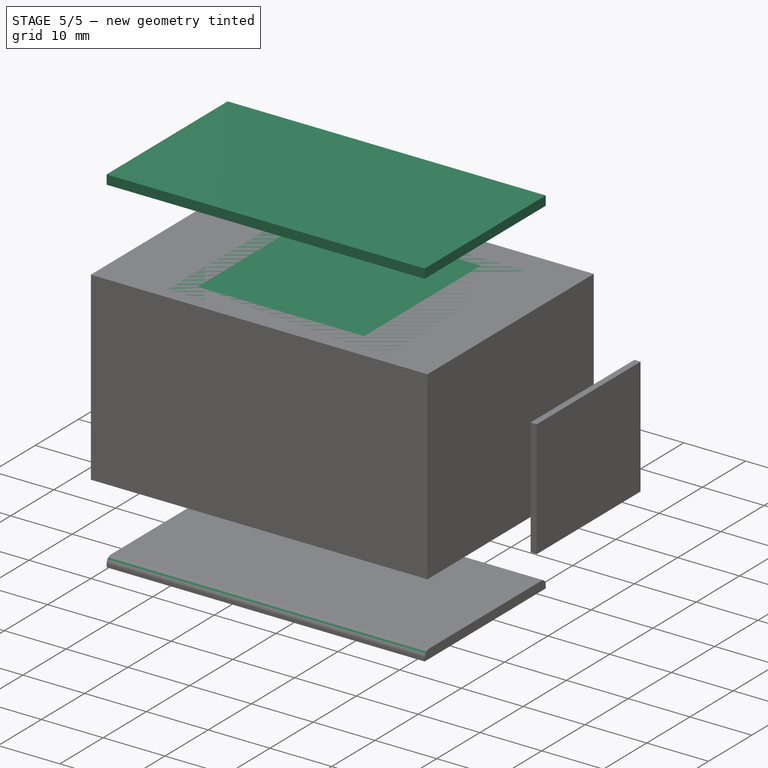
[diagram: stage 5 of 5 — iso view after this stage's code; geometry added in this stage tinted green]
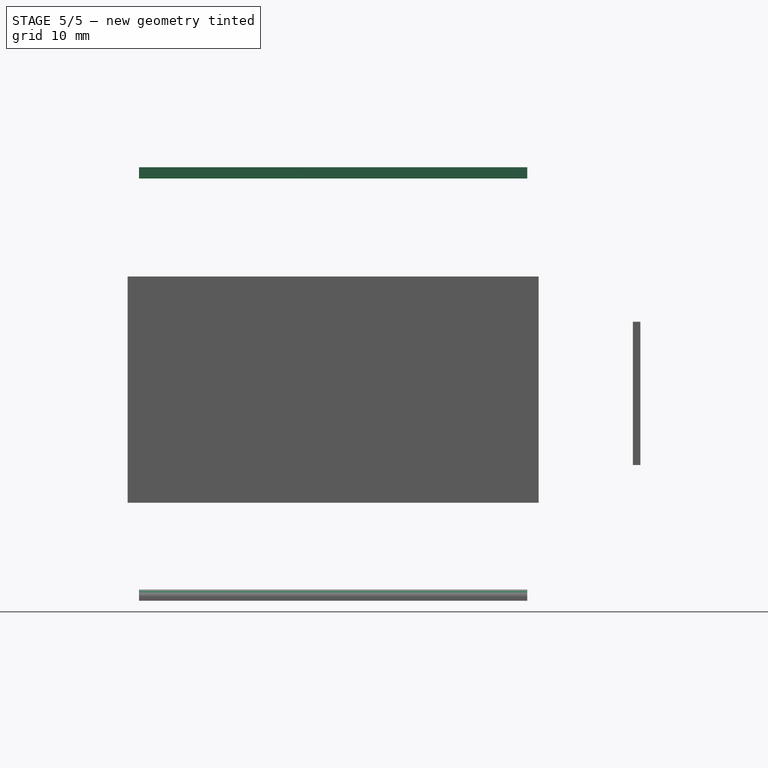
[diagram: stage 5 of 5 — front view after this stage's code; geometry added in this stage tinted green]
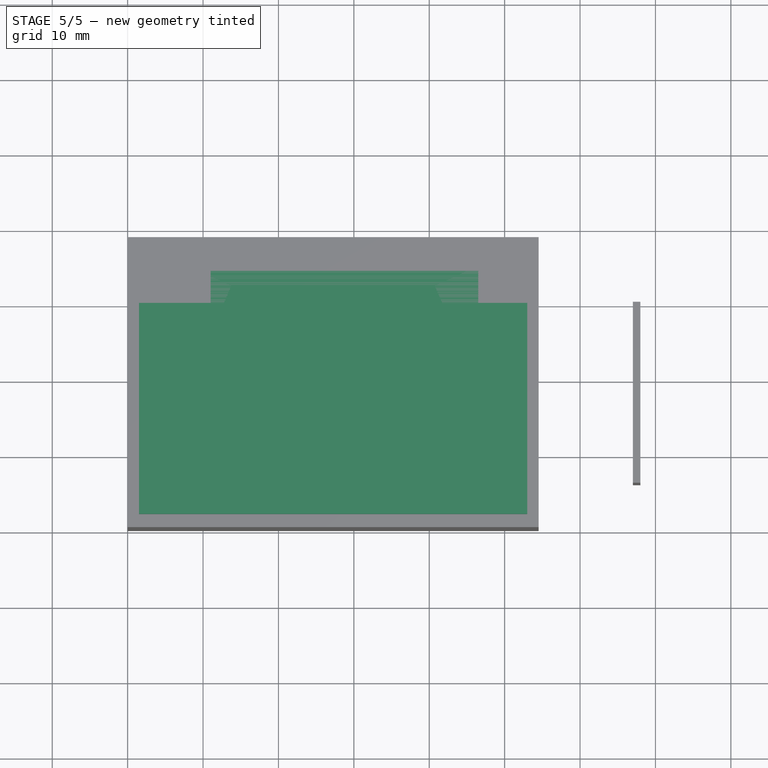
[diagram: stage 5 of 5 — top view after this stage's code; geometry added in this stage tinted green]
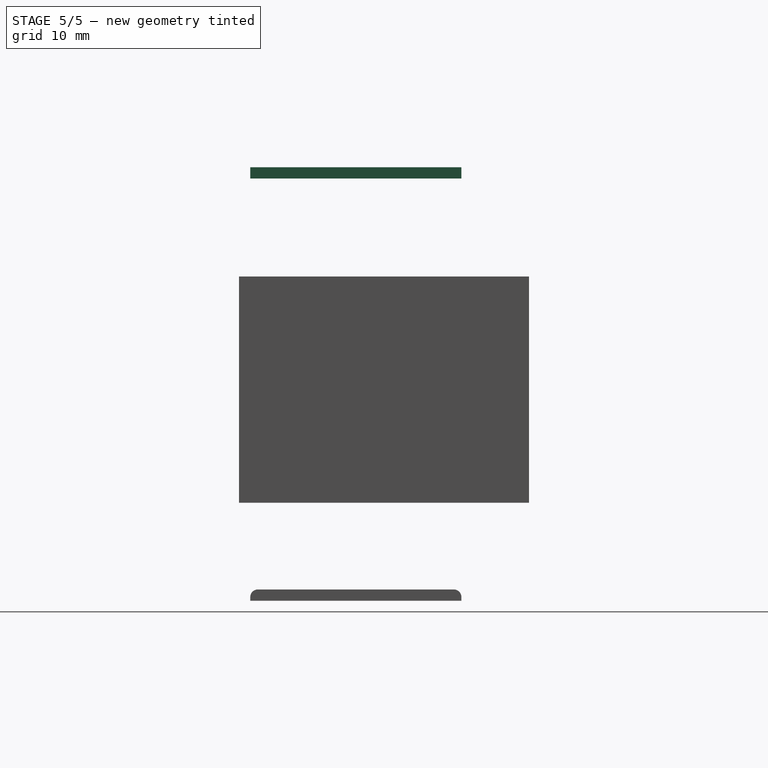
[diagram: stage 5 of 5 — right view after this stage's code; geometry added in this stage tinted green]
FEATURE [Sketcher::SketchObject] Sketch
  ArcFitTolerance = 1e-06
  FullyConstrained = true
  MakeInternals = false
  sketch-geometry (4):
    g0: LineSegment StartX=0 StartY=0 StartZ=0 EndX=51.5 EndY=0 EndZ=0
    g1: LineSegment StartX=51.5 StartY=0 StartZ=0 EndX=51.5 EndY=28 EndZ=0
    g2: LineSegment StartX=51.5 StartY=28 StartZ=0 EndX=0 EndY=28 EndZ=0
    g3: LineSegment StartX=0 StartY=28 StartZ=0 EndX=0 EndY=0 EndZ=0
  constraints (11):
    c: Coincident(g0,g1)
    c: Coincident(g1,g2)
    c: Coincident(g2,g3)
    c: Coincident(g3,g0)
    c: Horizontal(g0)
    c: Horizontal(g2)
    c: Vertical(g1)
    c: Vertical(g3)
    c: Distance(g1,g3) = 51.5
    c: Distance(g0,g2) = 28
    c: Coincident(g0,g-1)
FEATURE [PartDesign::Pad] Pad
  Direction = (0,0,1)
  Length = 1
  Length2 = 10
  Profile = -> Sketch
  ReferenceAxis = -> Sketch [N_Axis]
  Refine = true
  Suppressed = false
  Type = 0
FEATURE [Sketcher::SketchObject] Sketch001
  ArcFitTolerance = 1e-06
  AttachmentSupport = -> [Pad]
  ExternalGeometry = -> [Pad]
  FullyConstrained = true
  MakeInternals = false
  MapMode = 5
  Placement = pos=(0,0,1) rot=(0,0,1;0rad)
  sketch-geometry (4):
    g0: Circle CenterX=2.5 CenterY=2.5 CenterZ=0 NormalX=0 NormalY=0 NormalZ=1 AngleXU=0 Radius=1.5
    g1: Circle CenterX=2.5 CenterY=25.5 CenterZ=0 NormalX=0 NormalY=0 NormalZ=1 AngleXU=0 Radius=1.5
    g2: Circle CenterX=49 CenterY=25.5 CenterZ=0 NormalX=0 NormalY=0 NormalZ=1 AngleXU=0 Radius=1.5
    g3: Circle CenterX=49 CenterY=2.5 CenterZ=0 NormalX=0 NormalY=0 NormalZ=1 AngleXU=0 Radius=1.5
  constraints (12):
    c: Diameter(g0) = 3
    c: DistanceX(g0) = 2.5
    c: DistanceY(g0) = 2.5
    c: Diameter(g1) = 3
    c: Diameter(g2) = 3
    c: Diameter(g3) = 3
    c: DistanceX(g1) = 2.5
    c: DistanceY(g1) = 25.5
    c: DistanceX(g2) = 49
    c: DistanceY(g2) = 25.5
    c: DistanceX(g3) = 49
    c: DistanceY(g3) = 2.5
FEATURE [PartDesign::Pocket] Pocket
  BaseFeature = -> Pad
  Direction = (0,0,-1)
  Length = 5
  Length2 = 5
  Profile = -> Sketch001
  ReferenceAxis = -> Sketch001 [N_Axis]
  Refine = true
  Suppressed = false
  Type = 0
FEATURE [Sketcher::SketchObject] Sketch002
  ArcFitTolerance = 1e-06
  AttachmentSupport = -> [Pocket]
  ExternalGeometry = -> [Pocket]
  FullyConstrained = false
  MakeInternals = false
  MapMode = 5
  Placement = pos=(0,0,1) rot=(0,0,1;0rad)
  sketch-geometry (4):
    g0: LineSegment StartX=51.4991 StartY=23 StartZ=0 EndX=25.4991 EndY=23 EndZ=0
    g1: LineSegment StartX=25.4991 StartY=23 StartZ=0 EndX=25.4991 EndY=5 EndZ=0
    g2: LineSegment StartX=25.4991 StartY=5 StartZ=0 EndX=51.4991 EndY=5 EndZ=0
    g3: LineSegment StartX=51.4991 StartY=5 StartZ=0 EndX=51.4991 EndY=23 EndZ=0
  constraints (11):
    c: Coincident(g0,g1)
    c: Coincident(g1,g2)
    c: Coincident(g2,g3)
    c: Coincident(g3,g0)
    c: Horizontal(g0)
    c: Horizontal(g2)
    c: Vertical(g1)
    c: Vertical(g3)
    c: Distance(g1,g3) = 26
    c: Distance(g0,g2) = 18
    c: Distance(g0,g-3) = 5
FEATURE [PartDesign::Pad] Pad001
  BaseFeature = -> Pocket
  Direction = (0,0,1)
  Length = 3
  Length2 = 10
  Profile = -> Sketch002
  ReferenceAxis = -> Sketch002 [N_Axis]
  Refine = true
  Suppressed = false
  Type = 0
FEATURE [Sketcher::SketchObject] Sketch006
  ArcFitTolerance = 1e-06
  AttachmentSupport = -> [Pad001]
  ExternalGeometry = -> [Pad001]
  FullyConstrained = false
  MakeInternals = false
  MapMode = 5
  Placement = pos=(0,0,1) rot=(0,0,1;0rad)
  sketch-geometry (4):
    g0: LineSegment StartX=0 StartY=18 StartZ=0 EndX=0 EndY=10 EndZ=0
    g1: LineSegment StartX=0 StartY=10 StartZ=0 EndX=3.90235 EndY=10 EndZ=0
    g2: LineSegment StartX=3.90235 StartY=10 StartZ=0 EndX=3.90235 EndY=18 EndZ=0
    g3: LineSegment StartX=3.90235 StartY=18 StartZ=0 EndX=0 EndY=18 EndZ=0
  constraints (11):
    c: Coincident(g0,g1)
    c: Coincident(g1,g2)
    c: Coincident(g2,g3)
    c: Coincident(g3,g0)
    c: Vertical(g0)
    c: Vertical(g2)
    c: Horizontal(g1)
    c: Horizontal(g3)
    c: PointOnObject(g0,g-2)
    c: Distance(g-1,g1) = 10
    c: Distance(g-3,g3) = 10
FEATURE [PartDesign::Pad] Pad004
  BaseFeature = -> Pad001
  Direction = (0,0,1)
  Length = 5
  Length2 = 10
  Profile = -> Sketch006
  ReferenceAxis = -> Sketch006 [N_Axis]
  Refine = true
  Suppressed = false
  Type = 0
FEATURE [Part::Box] Box001  label="передняя крышка"
  AttacherType = Attacher::AttachEngine3D
  Height = 1.5
  Length = 51.5
  Placement = pos=(1.5,1.5,33) rot=(0,0,1;0rad)
  Width = 28
FEATURE [Part::Box] Box002  label="дисплей"
  AttacherType = Attacher::AttachEngine3D
  Height = 1
  Length = 35.5
  Placement = pos=(11,2,19) rot=(0,0,1;0rad)
  Width = 32
FEATURE [Part::Fillet] Fillet001
  Base = -> Fillet
  EdgeLinks = -> Fillet [Edge7]
  Edges = 1 edges r=1: [Edge7]
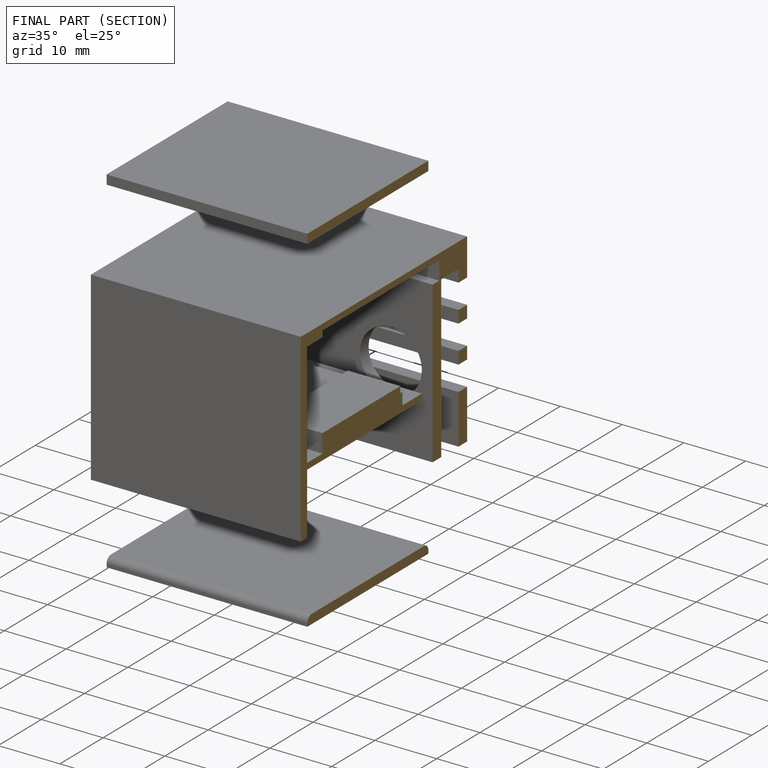
[diagram: finished part — half-section view (interior)]
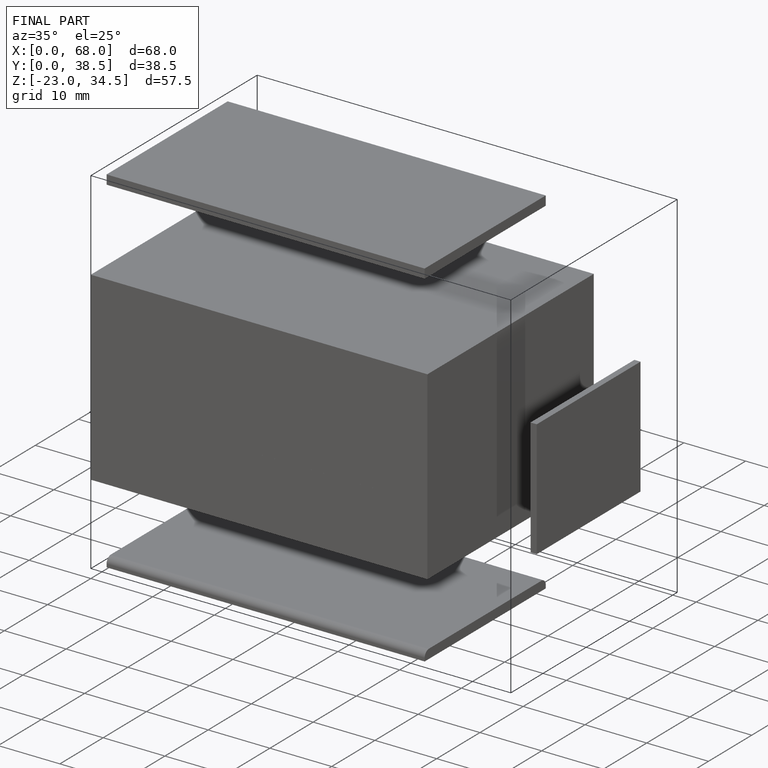
[diagram: finished part — iso view with bounding-box wireframe]
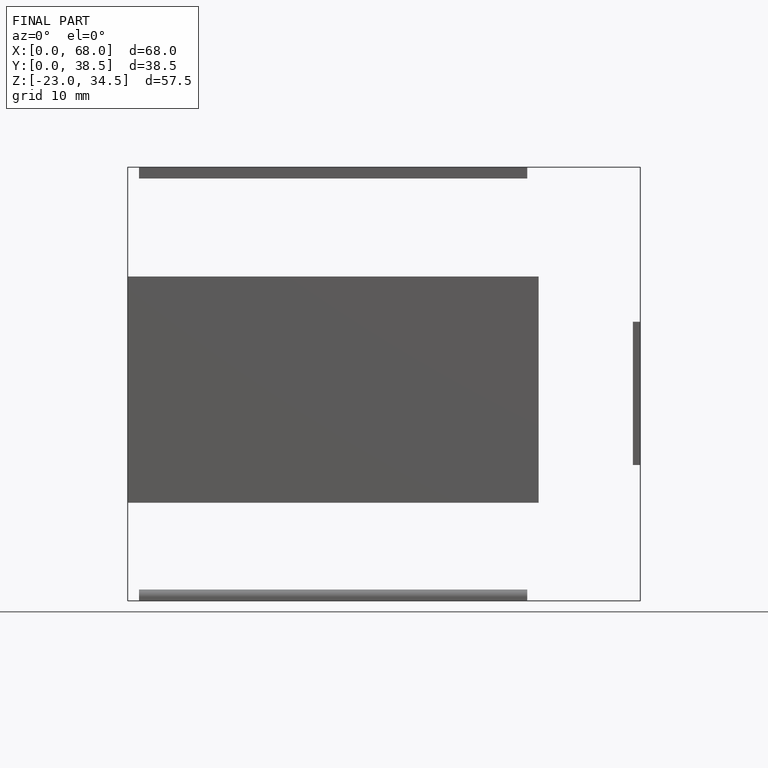
[diagram: finished part — front view with bounding-box wireframe]
